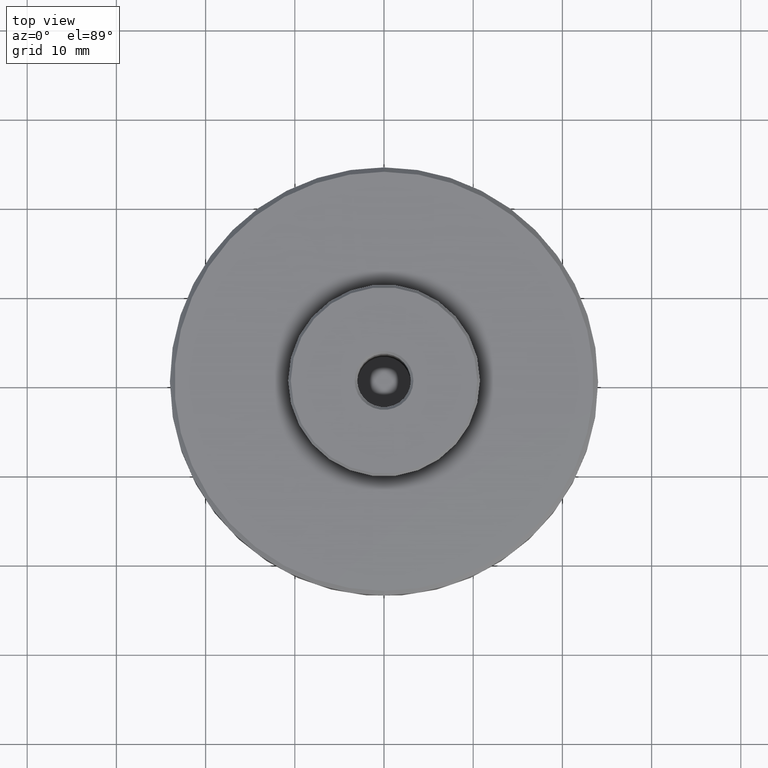
[diagram: clean part render]
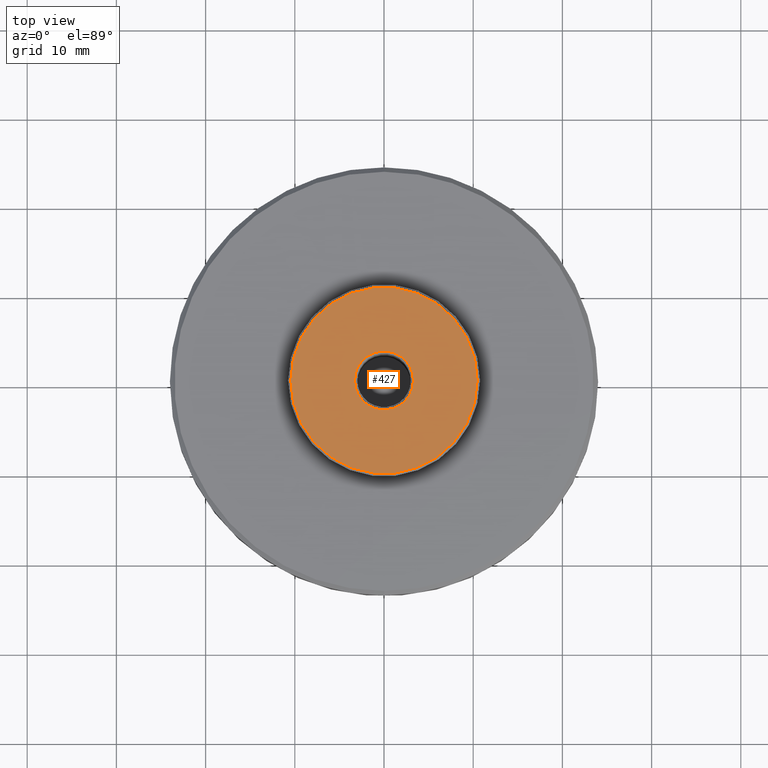
[diagram: same view with one face highlighted and labeled with its STEP entity id]
A machine part, top view. The second image highlights one B-rep face of the part: STEP entity #427.
In plain terms, the highlighted planar face has unit normal (0, 0, 1).
Its self-contained STEP definition (entity closure, byte-faithful):
#6 = CIRCLE ( 'NONE', #1074, 10.45000000000005600 ) ;
#15 = CARTESIAN_POINT ( 'NONE',  ( 0.0000000000000000000, 0.0000000000000000000, 18.43848561499994400 ) ) ;
#54 = CARTESIAN_POINT ( 'NONE',  ( 0.0000000000000000000, 0.0000000000000000000, 18.43848561500000100 ) ) ;
#114 = CARTESIAN_POINT ( 'NONE',  ( -10.45000000000005600, 0.0000000000000000000, 18.43848561499994400 ) ) ;
#158 = DIRECTION ( 'NONE',  ( -1.000000000000000000, 0.0000000000000000000, 0.0000000000000000000 ) ) ;
#203 = DIRECTION ( 'NONE',  ( 1.000000000000000000, 0.0000000000000000000, 0.0000000000000000000 ) ) ;
#222 = EDGE_CURVE ( 'NONE', #636, #1835, #1570, .T. ) ;
#384 = CARTESIAN_POINT ( 'NONE',  ( -3.300000000000038900, 4.041334437186313300E-016, 18.43848561500000100 ) ) ;
#423 = EDGE_LOOP ( 'NONE', ( #1821, #1269 ) ) ;
#427 = ADVANCED_FACE ( 'NONE', ( #790, #1727 ), #658, .T. ) ;
#543 = CIRCLE ( 'NONE', #1788, 3.300000000000038900 ) ;
#636 = VERTEX_POINT ( 'NONE', #114 ) ;
#658 = PLANE ( 'NONE',  #813 ) ;
#728 = DIRECTION ( 'NONE',  ( -0.0000000000000000000, -0.0000000000000000000, 1.000000000000000000 ) ) ;
#751 = AXIS2_PLACEMENT_3D ( 'NONE', #1223, #728, #1896 ) ;
#790 = FACE_BOUND ( 'NONE', #1451, .T. ) ;
#810 = DIRECTION ( 'NONE',  ( 1.000000000000000000, 0.0000000000000000000, 0.0000000000000000000 ) ) ;
#813 = AXIS2_PLACEMENT_3D ( 'NONE', #1540, #1683, #810 ) ;
#859 = CARTESIAN_POINT ( 'NONE',  ( 0.0000000000000000000, 0.0000000000000000000, 18.43848561500000100 ) ) ;
#971 = ORIENTED_EDGE ( 'NONE', *, *, #1207, .T. ) ;
#1013 = DIRECTION ( 'NONE',  ( 1.000000000000000000, 0.0000000000000000000, 0.0000000000000000000 ) ) ;
#1055 = DIRECTION ( 'NONE',  ( -0.0000000000000000000, -0.0000000000000000000, 1.000000000000000000 ) ) ;
#1074 = AXIS2_PLACEMENT_3D ( 'NONE', #15, #1055, #158 ) ;
#1094 = DIRECTION ( 'NONE',  ( -0.0000000000000000000, -0.0000000000000000000, -1.000000000000000000 ) ) ;
#1131 = ORIENTED_EDGE ( 'NONE', *, *, #1446, .T. ) ;
#1207 = EDGE_CURVE ( 'NONE', #1876, #1692, #1596, .T. ) ;
#1223 = CARTESIAN_POINT ( 'NONE',  ( 0.0000000000000000000, 0.0000000000000000000, 18.43848561499994400 ) ) ;
#1238 = AXIS2_PLACEMENT_3D ( 'NONE', #54, #1094, #203 ) ;
#1269 = ORIENTED_EDGE ( 'NONE', *, *, #1580, .T. ) ;
#1290 = CARTESIAN_POINT ( 'NONE',  ( 3.300000000000038900, 0.0000000000000000000, 18.43848561500000100 ) ) ;
#1431 = CARTESIAN_POINT ( 'NONE',  ( 10.45000000000005600, 1.298125607096197900E-015, 18.43848561499994400 ) ) ;
#1446 = EDGE_CURVE ( 'NONE', #1692, #1876, #543, .T. ) ;
#1451 = EDGE_LOOP ( 'NONE', ( #971, #1131 ) ) ;
#1540 = CARTESIAN_POINT ( 'NONE',  ( -10.57540000000000200, -10.57540000000000200, 18.43848561500000100 ) ) ;
#1570 = CIRCLE ( 'NONE', #751, 10.45000000000005600 ) ;
#1580 = EDGE_CURVE ( 'NONE', #1835, #636, #6, .T. ) ;
#1596 = CIRCLE ( 'NONE', #1238, 3.300000000000038900 ) ;
#1683 = DIRECTION ( 'NONE',  ( 0.0000000000000000000, 0.0000000000000000000, 1.000000000000000000 ) ) ;
#1692 = VERTEX_POINT ( 'NONE', #384 ) ;
#1727 = FACE_OUTER_BOUND ( 'NONE', #423, .T. ) ;
#1788 = AXIS2_PLACEMENT_3D ( 'NONE', #859, #1897, #1013 ) ;
#1821 = ORIENTED_EDGE ( 'NONE', *, *, #222, .T. ) ;
#1835 = VERTEX_POINT ( 'NONE', #1431 ) ;
#1876 = VERTEX_POINT ( 'NONE', #1290 ) ;
#1896 = DIRECTION ( 'NONE',  ( -1.000000000000000000, 0.0000000000000000000, 0.0000000000000000000 ) ) ;
#1897 = DIRECTION ( 'NONE',  ( -0.0000000000000000000, -0.0000000000000000000, -1.000000000000000000 ) ) ;